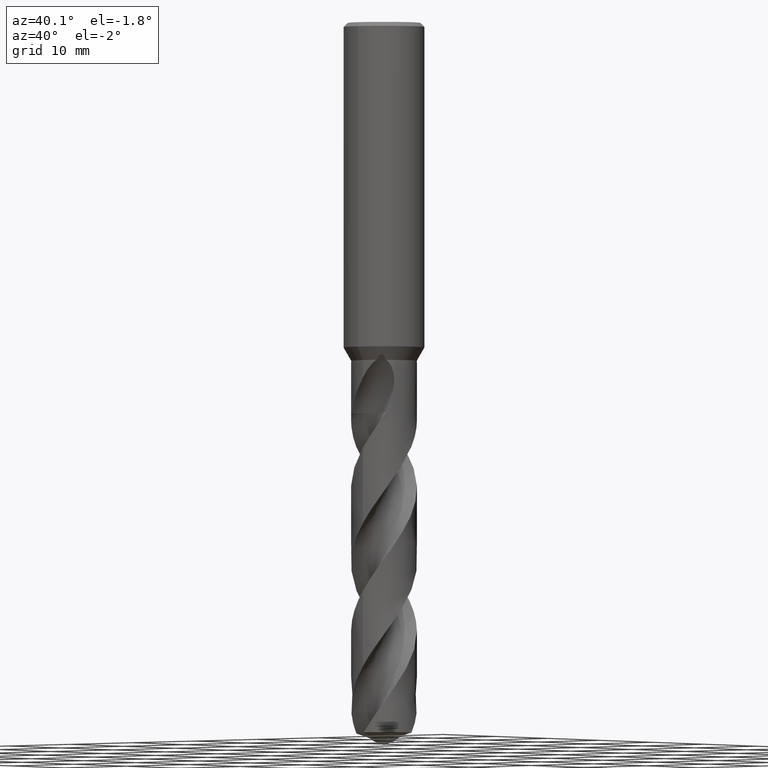
[diagram: clean part render]
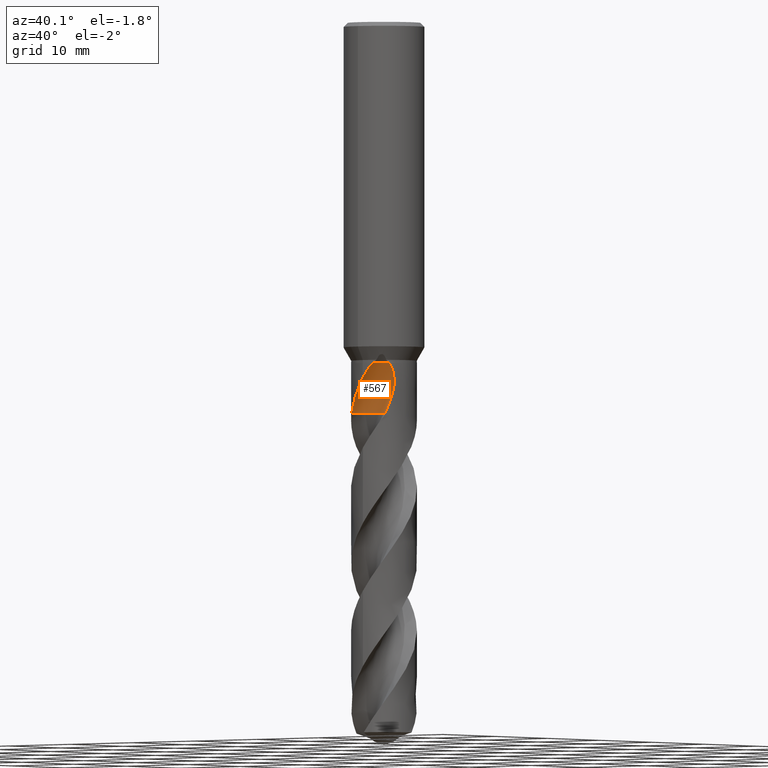
[diagram: same view with one face highlighted and labeled with its STEP entity id]
A machine part, auxiliary view. The second image highlights one B-rep face of the part: STEP entity #567.
In plain terms, the highlighted face is a SurfaceOfRevolution surface.
Its self-contained STEP definition (entity closure, byte-faithful):
#385=EDGE_CURVE('',#597,#481,#911,.T.);
#391=EDGE_CURVE('',#607,#443,#917,.T.);
#405=VERTEX_POINT('',#933);
#419=VERTEX_POINT('',#948);
#443=VERTEX_POINT('',#974);
#475=EDGE_CURVE('',#725,#597,#1009,.T.);
#481=VERTEX_POINT('',#1015);
#497=EDGE_CURVE('',#481,#405,#1031,.T.);
#521=EDGE_CURVE('',#419,#607,#1057,.T.);
#547=EDGE_CURVE('',#725,#419,#1086,.T.);
#567=ADVANCED_FACE('',(#1108),#1109,.F.);
#597=VERTEX_POINT('',#1140);
#607=VERTEX_POINT('',#1151);
#725=VERTEX_POINT('',#1285);
#763=EDGE_CURVE('',#405,#443,#1324,.T.);
#911=B_SPLINE_CURVE_WITH_KNOTS('',3,(#2830,#2831,#2832,#2833,#2834,#2835,#2836,#2837,#2838,#2839,#2840,#2841,#2842,#2843),.UNSPECIFIED.,.F.,.F.,(4,2,2,2,2,2,4),(0.0,1.98428255010921,3.06773842252202,4.04906558106683,5.18911338485427,6.55855965948736,7.26396815256232),.UNSPECIFIED.);
#917=CIRCLE('',#2851,17.5983025955969);
#933=CARTESIAN_POINT('',(3.06820696975595,-2.64344396587879,-42.0));
#948=CARTESIAN_POINT('',(0.31859667807486,-1.23384841949216,-48.1286));
#974=CARTESIAN_POINT('',(3.29516326133441,-2.35449754193438,-45.9110400764777));
#1009=B_SPLINE_CURVE_WITH_KNOTS('',3,(#3202,#3203,#3204,#3205,#3206,#3207,#3208,#3209,#3210,#3211,#3212,#3213,#3214,#3215),.UNSPECIFIED.,.F.,.F.,(4,2,2,2,2,2,4),(0.0,1.98428255010921,3.06773842252202,4.04906558106683,5.18911338485427,6.55855965948736,7.26396815256232),.UNSPECIFIED.);
#1015=CARTESIAN_POINT('',(1.38069350142974,-3.80727927332757,-42.0));
#1031=B_SPLINE_CURVE_WITH_KNOTS('',3,(#3317,#3318,#3319,#3320,#3321,#3322,#3323,#3324,#3325,#3326,#3327,#3328),.UNSPECIFIED.,.F.,.F.,(4,2,2,2,2,4),(0.0,0.880809713291172,1.68529407606654,2.49572287185115,3.00191710547581,3.52996499022341),.UNSPECIFIED.);
#1057=CIRCLE('',#3478,2.7);
#1086=CIRCLE('',#3544,2.7);
#1108=FACE_OUTER_BOUND('',#3580,.T.);
#1109=SURFACE_OF_REVOLUTION('',#3581,#3582);
#1140=CARTESIAN_POINT('',(1.20172966252063E-012,-4.04990400552509,-43.8235521703117));
#1151=CARTESIAN_POINT('',(1.90918830913297,-2.00581169086703,-48.1286));
#1285=CARTESIAN_POINT('',(-2.58069286403752,-3.12118941902374,-48.1286));
#1324=B_SPLINE_CURVE_WITH_KNOTS('',3,(#5249,#5250,#5251,#5252,#5253,#5254,#5255,#5256),.UNSPECIFIED.,.F.,.F.,(4,2,2,4),(0.0,0.758806500234287,1.82003420757056,2.82938118143987),.UNSPECIFIED.);
#2830=CARTESIAN_POINT('',(-2.58069286403751,-3.12118941902374,-48.1286));
#2831=CARTESIAN_POINT('',(-2.31354557495827,-3.34207319082227,-47.5652803348492));
#2832=CARTESIAN_POINT('',(-2.00638394820624,-3.53842565396227,-47.0400847175773));
#2833=CARTESIAN_POINT('',(-1.47078373213145,-3.77909597518751,-46.1627155359403));
#2834=CARTESIAN_POINT('',(-1.27804975754288,-3.84832760899593,-45.8540293231897));
#2835=CARTESIAN_POINT('',(-0.90494217854229,-3.95179585356341,-45.2564976753937));
#2836=CARTESIAN_POINT('',(-0.726234306050252,-3.9883508138327,-44.970436843123));
#2837=CARTESIAN_POINT('',(-0.33940938138544,-4.04110783893692,-44.3539063074307));
#2838=CARTESIAN_POINT('',(-0.128060752046483,-4.05349361466946,-44.0186104261635));
#2839=CARTESIAN_POINT('',(0.341289353304426,-4.04362027458608,-43.3013060919213));
#2840=CARTESIAN_POINT('',(0.619565647524053,-4.01308432473504,-42.893154920315));
#2841=CARTESIAN_POINT('',(1.05510862298179,-3.91299454985429,-42.3469096283376));
#2842=CARTESIAN_POINT('',(1.2147468259415,-3.86745950335903,-42.1625520588197));
#2843=CARTESIAN_POINT('',(1.38069350142974,-3.80727927332756,-42.0));
#2851=AXIS2_PLACEMENT_3D('',#5529,#5530,#5531);
#3202=CARTESIAN_POINT('',(-2.58069286403751,-3.12118941902374,-48.1286));
#3203=CARTESIAN_POINT('',(-2.31354557495827,-3.34207319082227,-47.5652803348492));
#3204=CARTESIAN_POINT('',(-2.00638394820624,-3.53842565396227,-47.0400847175773));
#3205=CARTESIAN_POINT('',(-1.47078373213145,-3.77909597518751,-46.1627155359403));
#3206=CARTESIAN_POINT('',(-1.27804975754288,-3.84832760899593,-45.8540293231897));
#3207=CARTESIAN_POINT('',(-0.90494217854229,-3.95179585356341,-45.2564976753937));
#3208=CARTESIAN_POINT('',(-0.726234306050252,-3.9883508138327,-44.970436843123));
#3209=CARTESIAN_POINT('',(-0.33940938138544,-4.04110783893692,-44.3539063074307));
#3210=CARTESIAN_POINT('',(-0.128060752046483,-4.05349361466946,-44.0186104261635));
#3211=CARTESIAN_POINT('',(0.341289353304426,-4.04362027458608,-43.3013060919213));
#3212=CARTESIAN_POINT('',(0.619565647524053,-4.01308432473504,-42.893154920315));
#3213=CARTESIAN_POINT('',(1.05510862298179,-3.91299454985429,-42.3469096283376));
#3214=CARTESIAN_POINT('',(1.2147468259415,-3.86745950335903,-42.1625520588197));
#3215=CARTESIAN_POINT('',(1.38069350142974,-3.80727927332756,-42.0));
#3317=CARTESIAN_POINT('',(1.26223383066589,-4.0999,-42.0));
#3318=CARTESIAN_POINT('',(1.3540770404484,-3.82103141797222,-42.0));
#3319=CARTESIAN_POINT('',(1.49491962890735,-3.56293062522925,-41.9999999999883));
#3320=CARTESIAN_POINT('',(1.86163743747995,-3.13900011890794,-41.9999999999883));
#3321=CARTESIAN_POINT('',(2.07278885681404,-2.97461766051707,-42.0000000000006));
#3322=CARTESIAN_POINT('',(2.55326761546765,-2.73505191745613,-42.0000000000006));
#3323=CARTESIAN_POINT('',(2.81440321349011,-2.66477466723874,-42.0000000000001));
#3324=CARTESIAN_POINT('',(3.25108252858972,-2.62798813646136,-42.0000000000001));
#3325=CARTESIAN_POINT('',(3.41995632933729,-2.6325863837203,-42.0));
#3326=CARTESIAN_POINT('',(3.76153976547042,-2.67640675836131,-42.0));
#3327=CARTESIAN_POINT('',(3.9332279554744,-2.71699208400555,-42.0));
#3328=CARTESIAN_POINT('',(4.0999,-2.77324902085361,-42.0));
#3478=AXIS2_PLACEMENT_3D('',#5654,#5655,#5656);
#3544=AXIS2_PLACEMENT_3D('',#5693,#5694,#5695);
#3580=EDGE_LOOP('',(#5723,#5724,#5725,#5726,#5727,#5728,#5729));
#3581=(B_SPLINE_CURVE(3,(#5731,#5732,#5733,#5734,#5735,#5736,#5737,#5738,#5739),.UNSPECIFIED.,.F.,.F.)B_SPLINE_CURVE_WITH_KNOTS((4,1,3,1,4),(-2.85637575462286,-2.55359152792824,-2.25080730123363,-1.94802307453902,-1.64523884784441),.UNSPECIFIED.)RATIONAL_B_SPLINE_CURVE((1.09167828793505,1.03055942931169,0.969440570688315,1.03055942931169,1.09167828793505,1.03055942931169,0.969440570688315,1.03055942931169,1.09167828793505))BOUNDED_CURVE()REPRESENTATION_ITEM('')GEOMETRIC_REPRESENTATION_ITEM()CURVE());
#3582=AXIS1_PLACEMENT('',#5746,#5747);
#5249=CARTESIAN_POINT('',(3.06820696975595,-2.64344396587879,-42.0));
#5250=CARTESIAN_POINT('',(3.16826939078712,-2.52730364594778,-42.2011847538544));
#5251=CARTESIAN_POINT('',(3.24714786593733,-2.42243401408755,-42.4512484014289));
#5252=CARTESIAN_POINT('',(3.38880825988629,-2.22219342792958,-43.1398366978624));
#5253=CARTESIAN_POINT('',(3.43583870599394,-2.14400673378769,-43.6266263611164));
#5254=CARTESIAN_POINT('',(3.44180875544739,-2.13441342625114,-44.6885914087105));
#5255=CARTESIAN_POINT('',(3.40766389793206,-2.19704838341322,-45.2711757466964));
#5256=CARTESIAN_POINT('',(3.29516326133442,-2.35449754193438,-45.9110400764777));
#5529=CARTESIAN_POINT('',(1.37289945825292,-19.575,-48.9866621614081));
#5530=DIRECTION('',(0.847998304005088,-1.14714587091566E-017,-0.52999894000318));
#5531=DIRECTION('',(0.0535598122533608,0.994880693138896,0.0856956996053773));
#5654=CARTESIAN_POINT('',(-1.64316774041886E-005,-3.91498356832259,-48.1286));
#5655=DIRECTION('',(-0.0,0.0,-1.0));
#5656=DIRECTION('',(-0.707100695353913,-0.707112866966804,0.0));
#5693=CARTESIAN_POINT('',(-1.64316774041886E-005,-3.91498356832259,-48.1286));
#5694=DIRECTION('',(-0.0,0.0,-1.0));
#5695=DIRECTION('',(-0.707100695353913,-0.707112866966804,0.0));
#5723=ORIENTED_EDGE('',*,*,#763,.F.);
#5724=ORIENTED_EDGE('',*,*,#497,.F.);
#5725=ORIENTED_EDGE('',*,*,#385,.F.);
#5726=ORIENTED_EDGE('',*,*,#475,.F.);
#5727=ORIENTED_EDGE('',*,*,#547,.T.);
#5728=ORIENTED_EDGE('',*,*,#521,.T.);
#5729=ORIENTED_EDGE('',*,*,#391,.T.);
#5731=CARTESIAN_POINT('',(1.90918830913297,-2.00581169086703,-48.1286));
#5732=CARTESIAN_POINT('',(1.53523793221417,-1.63185487698776,-48.1286));
#5733=CARTESIAN_POINT('',(0.562860513136564,-1.10049451278735,-48.1286));
#5734=CARTESIAN_POINT('',(-0.539086352740827,-1.21700539879469,-48.1286));
#5735=CARTESIAN_POINT('',(-1.02809798885801,-1.41837620796632,-48.1286));
#5736=CARTESIAN_POINT('',(-1.5171096249752,-1.61974701713796,-48.1286));
#5737=CARTESIAN_POINT('',(-2.38156561377763,-2.31298400778317,-48.1286));
#5738=CARTESIAN_POINT('',(-2.69780939937251,-3.37498756231952,-48.1286));
#5739=CARTESIAN_POINT('',(-2.69999340778163,-3.9038332989495,-48.1286));
#5746=CARTESIAN_POINT('',(1.37289945825292,-19.575,-48.9866621614081));
#5747=DIRECTION('',(-0.847998304005088,0.0,0.52999894000318));